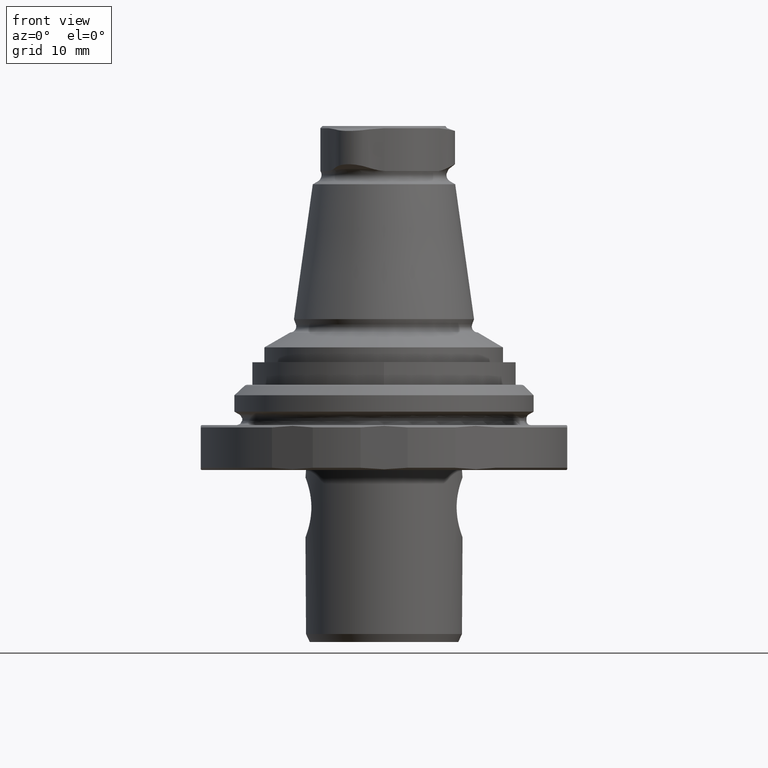
[diagram: clean part render]
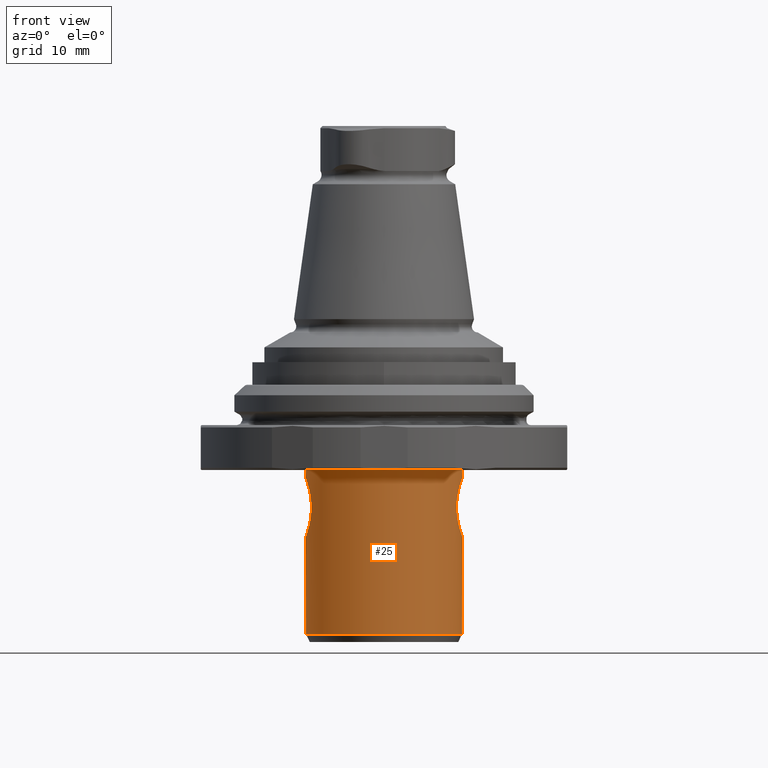
[diagram: same view with one face highlighted and labeled with its STEP entity id]
A machine part, front view. The second image highlights one B-rep face of the part: STEP entity #25.
In plain terms, the highlighted cylindrical surface (bore or boss wall) has radius 10.5 mm, axis along (0, 0, -1).
Its self-contained STEP definition (entity closure, byte-faithful):
#25 = ADVANCED_FACE('',(#26,#132,#310),#39,.T.);
#26 = FACE_BOUND('',#27,.T.);
#27 = EDGE_LOOP('',(#28,#61,#83,#131));
#28 = ORIENTED_EDGE('',*,*,#29,.T.);
#29 = EDGE_CURVE('',#30,#30,#32,.T.);
#30 = VERTEX_POINT('',#31);
#31 = CARTESIAN_POINT('',(-2.914335439641E-016,10.5,-7.));
#32 = SURFACE_CURVE('',#33,(#38,#49),.PCURVE_S1.);
#33 = CIRCLE('',#34,10.5);
#34 = AXIS2_PLACEMENT_3D('',#35,#36,#37);
#35 = CARTESIAN_POINT('',(2.888894916581E-031,-9.089951014118E-016,-7.)
  );
#36 = DIRECTION('',(0.E+000,0.E+000,-1.));
#37 = DIRECTION('',(-2.775557561563E-017,1.,0.E+000));
#38 = PCURVE('',#39,#44);
#39 = CYLINDRICAL_SURFACE('',#40,10.5);
#40 = AXIS2_PLACEMENT_3D('',#41,#42,#43);
#41 = CARTESIAN_POINT('',(2.888894916581E-031,-9.089951014118E-016,-50.)
  );
#42 = DIRECTION('',(0.E+000,0.E+000,-1.));
#43 = DIRECTION('',(-2.775557561563E-017,1.,0.E+000));
#44 = DEFINITIONAL_REPRESENTATION('',(#45),#48);
#45 = B_SPLINE_CURVE_WITH_KNOTS('',1,(#46,#47),.UNSPECIFIED.,.F.,.F.,(2,
    2),(0.E+000,6.28318530718),.PIECEWISE_BEZIER_KNOTS.);
#46 = CARTESIAN_POINT('',(0.E+000,-43.));
#47 = CARTESIAN_POINT('',(6.28318530718,-43.));
#48 = ( GEOMETRIC_REPRESENTATION_CONTEXT(2) 
PARAMETRIC_REPRESENTATION_CONTEXT() REPRESENTATION_CONTEXT('2D SPACE',''
  ) );
#49 = PCURVE('',#50,#55);
#50 = PLANE('',#51);
#51 = AXIS2_PLACEMENT_3D('',#52,#53,#54);
#52 = CARTESIAN_POINT('',(-17.5,-3.231871150908E-016,-7.));
#53 = DIRECTION('',(0.E+000,0.E+000,-1.));
#54 = DIRECTION('',(-1.,3.347474207549E-017,0.E+000));
#55 = DEFINITIONAL_REPRESENTATION('',(#56),#60);
#56 = CIRCLE('',#57,10.5);
#57 = AXIS2_PLACEMENT_2D('',#58,#59);
#58 = CARTESIAN_POINT('',(-17.5,-6.902532920684E-031));
#59 = DIRECTION('',(6.123031769112E-017,1.));
#60 = ( GEOMETRIC_REPRESENTATION_CONTEXT(2) 
PARAMETRIC_REPRESENTATION_CONTEXT() REPRESENTATION_CONTEXT('2D SPACE',''
  ) );
#61 = ORIENTED_EDGE('',*,*,#62,.T.);
#62 = EDGE_CURVE('',#30,#63,#65,.T.);
#63 = VERTEX_POINT('',#64);
#64 = CARTESIAN_POINT('',(-2.914335439641E-016,10.5,-28.92774653974));
#65 = SEAM_CURVE('',#66,(#69,#76),.PCURVE_S1.);
#66 = B_SPLINE_CURVE_WITH_KNOTS('',1,(#67,#68),.UNSPECIFIED.,.F.,.F.,(2,
    2),(-43.,-21.07225346025),.PIECEWISE_BEZIER_KNOTS.);
#67 = CARTESIAN_POINT('',(-2.914335439641E-016,10.5,-7.));
#68 = CARTESIAN_POINT('',(-2.914335439641E-016,10.5,-28.92774653974));
#69 = PCURVE('',#39,#70);
#70 = DEFINITIONAL_REPRESENTATION('',(#71),#75);
#71 = LINE('',#72,#73);
#72 = CARTESIAN_POINT('',(6.28318530718,0.E+000));
#73 = VECTOR('',#74,1.);
#74 = DIRECTION('',(0.E+000,1.));
#75 = ( GEOMETRIC_REPRESENTATION_CONTEXT(2) 
PARAMETRIC_REPRESENTATION_CONTEXT() REPRESENTATION_CONTEXT('2D SPACE',''
  ) );
#76 = PCURVE('',#39,#77);
#77 = DEFINITIONAL_REPRESENTATION('',(#78),#82);
#78 = LINE('',#79,#80);
#79 = CARTESIAN_POINT('',(0.E+000,0.E+000));
#80 = VECTOR('',#81,1.);
#81 = DIRECTION('',(0.E+000,1.));
#82 = ( GEOMETRIC_REPRESENTATION_CONTEXT(2) 
PARAMETRIC_REPRESENTATION_CONTEXT() REPRESENTATION_CONTEXT('2D SPACE',''
  ) );
#83 = ORIENTED_EDGE('',*,*,#84,.F.);
#84 = EDGE_CURVE('',#63,#63,#85,.T.);
#85 = SURFACE_CURVE('',#86,(#91,#97),.PCURVE_S1.);
#86 = CIRCLE('',#87,10.5);
#87 = AXIS2_PLACEMENT_3D('',#88,#89,#90);
#88 = CARTESIAN_POINT('',(2.888894916581E-031,-9.089951014118E-016,
    -28.92774653974));
#89 = DIRECTION('',(0.E+000,0.E+000,-1.));
#90 = DIRECTION('',(-2.775557561563E-017,1.,0.E+000));
#91 = PCURVE('',#39,#92);
#92 = DEFINITIONAL_REPRESENTATION('',(#93),#96);
#93 = B_SPLINE_CURVE_WITH_KNOTS('',1,(#94,#95),.UNSPECIFIED.,.F.,.F.,(2,
    2),(0.E+000,6.28318530718),.PIECEWISE_BEZIER_KNOTS.);
#94 = CARTESIAN_POINT('',(0.E+000,-21.07225346025));
#95 = CARTESIAN_POINT('',(6.28318530718,-21.07225346025));
#96 = ( GEOMETRIC_REPRESENTATION_CONTEXT(2) 
PARAMETRIC_REPRESENTATION_CONTEXT() REPRESENTATION_CONTEXT('2D SPACE',''
  ) );
#97 = PCURVE('',#98,#103);
#98 = CONICAL_SURFACE('',#99,10.,0.436332312999);
#99 = AXIS2_PLACEMENT_3D('',#100,#101,#102);
#100 = CARTESIAN_POINT('',(2.888894916581E-031,-9.089951014118E-016,-30.
    ));
#101 = DIRECTION('',(0.E+000,0.E+000,1.));
#102 = DIRECTION('',(2.775557561563E-017,-1.,0.E+000));
#103 = DEFINITIONAL_REPRESENTATION('',(#104),#130);
#104 = B_SPLINE_CURVE_WITH_KNOTS('',3,(#105,#106,#107,#108,#109,#110,
    #111,#112,#113,#114,#115,#116,#117,#118,#119,#120,#121,#122,#123,
    #124,#125,#126,#127,#128,#129),.UNSPECIFIED.,.F.,.F.,(4,1,1,1,1,1,1,
    1,1,1,1,1,1,1,1,1,1,1,1,1,1,1,4),(0.E+000,0.285599332145,
    0.571198664289,0.856797996434,1.142397328578,1.427996660723,
    1.713595992867,1.999195325012,2.284794657156,2.570393989301,
    2.855993321445,3.14159265359,3.427191985734,3.712791317879,
    3.998390650023,4.283989982168,4.569589314312,4.855188646457,
    5.140787978601,5.426387310746,5.711986642891,5.997585975035,
    6.28318530718),.QUASI_UNIFORM_KNOTS.);
#105 = CARTESIAN_POINT('',(9.424777960769,1.072253460255));
#106 = CARTESIAN_POINT('',(9.329578183388,1.072253460255));
#107 = CARTESIAN_POINT('',(9.139178628625,1.072253460255));
#108 = CARTESIAN_POINT('',(8.85357929648,1.072253460255));
#109 = CARTESIAN_POINT('',(8.567979964336,1.072253460255));
#110 = CARTESIAN_POINT('',(8.282380632191,1.072253460255));
#111 = CARTESIAN_POINT('',(7.996781300047,1.072253460255));
#112 = CARTESIAN_POINT('',(7.711181967902,1.072253460255));
#113 = CARTESIAN_POINT('',(7.425582635758,1.072253460255));
#114 = CARTESIAN_POINT('',(7.139983303613,1.072253460255));
#115 = CARTESIAN_POINT('',(6.854383971469,1.072253460255));
#116 = CARTESIAN_POINT('',(6.568784639324,1.072253460255));
#117 = CARTESIAN_POINT('',(6.28318530718,1.072253460255));
#118 = CARTESIAN_POINT('',(5.997585975035,1.072253460255));
#119 = CARTESIAN_POINT('',(5.711986642891,1.072253460255));
#120 = CARTESIAN_POINT('',(5.426387310746,1.072253460255));
#121 = CARTESIAN_POINT('',(5.140787978601,1.072253460255));
#122 = CARTESIAN_POINT('',(4.855188646457,1.072253460255));
#123 = CARTESIAN_POINT('',(4.569589314312,1.072253460255));
#124 = CARTESIAN_POINT('',(4.283989982168,1.072253460255));
#125 = CARTESIAN_POINT('',(3.998390650023,1.072253460255));
#126 = CARTESIAN_POINT('',(3.712791317879,1.072253460255));
#127 = CARTESIAN_POINT('',(3.427191985734,1.072253460255));
#128 = CARTESIAN_POINT('',(3.236792430971,1.072253460255));
#129 = CARTESIAN_POINT('',(3.14159265359,1.072253460255));
#130 = ( GEOMETRIC_REPRESENTATION_CONTEXT(2) 
PARAMETRIC_REPRESENTATION_CONTEXT() REPRESENTATION_CONTEXT('2D SPACE',''
  ) );
#131 = ORIENTED_EDGE('',*,*,#62,.F.);
#132 = FACE_BOUND('',#133,.T.);
#133 = EDGE_LOOP('',(#134));
#134 = ORIENTED_EDGE('',*,*,#135,.F.);
#135 = EDGE_CURVE('',#136,#136,#138,.T.);
#136 = VERTEX_POINT('',#137);
#137 = CARTESIAN_POINT('',(-10.5,-7.683715606687E-016,-16.));
#138 = SURFACE_CURVE('',#139,(#159,#232),.PCURVE_S1.);
#139 = B_SPLINE_CURVE_WITH_KNOTS('',3,(#140,#141,#142,#143,#144,#145,
    #146,#147,#148,#149,#150,#151,#152,#153,#154,#155,#156,#157,#158),
  .UNSPECIFIED.,.T.,.F.,(1,1,1,1,1,1,1,1,1,1,1,1,1,1,1,1,1,1,1,1,1,1,1),
  (-4.734395300078E-003,-3.156263533386E-003,-1.578131766693E-003,
    7.457290523101E-019,1.578131766693E-003,3.156263533386E-003,
    4.734395300078E-003,6.312527066771E-003,7.890658833464E-003,
    9.468790600157E-003,1.104692236685E-002,1.262505413354E-002,
    1.420318590024E-002,1.578131766693E-002,1.735944943362E-002,
    1.893758120031E-002,2.051571296701E-002,2.20938447337E-002,
    2.367197650039E-002,2.525010826708E-002,2.682824003378E-002,
    2.840637180047E-002,2.998450356716E-002),.UNSPECIFIED.);
#140 = CARTESIAN_POINT('',(-10.41619125491,1.581241846013,
    -15.78704197802));
#141 = CARTESIAN_POINT('',(-10.54203541505,1.263255026958E-003,
    -16.10681691007));
#142 = CARTESIAN_POINT('',(-10.41566708484,-1.586294866121,
    -15.78569038169));
#143 = CARTESIAN_POINT('',(-10.11315895501,-2.901838888228,
    -14.89801765556));
#144 = CARTESIAN_POINT('',(-9.800579724117,-3.785356635204,
    -13.58435323488));
#145 = CARTESIAN_POINT('',(-9.662221751712,-4.106925304122,
    -12.00410675717));
#146 = CARTESIAN_POINT('',(-9.799999389013,-3.78693583034,
    -10.41663416979));
#147 = CARTESIAN_POINT('',(-10.11403284706,-2.899375740519,
    -9.099063056431));
#148 = CARTESIAN_POINT('',(-10.4158598062,-1.583459092719,
    -8.213886411058));
#149 = CARTESIAN_POINT('',(-10.54199243996,-1.740133055027E-003,
    -7.893288531368));
#150 = CARTESIAN_POINT('',(-10.41616999514,1.582983856446,-8.21296061536
    ));
#151 = CARTESIAN_POINT('',(-10.11311612101,2.902570064305,
    -9.101854678167));
#152 = CARTESIAN_POINT('',(-9.799888348387,3.78702851985,-10.41879339025
    ));
#153 = CARTESIAN_POINT('',(-9.66228041387,4.106826567998,-12.00100239083
    ));
#154 = CARTESIAN_POINT('',(-9.800454043569,3.785663920379,
    -13.58505919978));
#155 = CARTESIAN_POINT('',(-10.11401235863,2.899618523697,
    -14.90091071889));
#156 = CARTESIAN_POINT('',(-10.41619125491,1.581241846013,
    -15.78704197802));
#157 = CARTESIAN_POINT('',(-10.54203541505,1.263255026958E-003,
    -16.10681691007));
#158 = CARTESIAN_POINT('',(-10.41566708484,-1.586294866121,
    -15.78569038169));
#159 = PCURVE('',#39,#160);
#160 = DEFINITIONAL_REPRESENTATION('',(#161),#231);
#161 = B_SPLINE_CURVE_WITH_KNOTS('',3,(#162,#163,#164,#165,#166,#167,
    #168,#169,#170,#171,#172,#173,#174,#175,#176,#177,#178,#179,#180,
    #181,#182,#183,#184,#185,#186,#187,#188,#189,#190,#191,#192,#193,
    #194,#195,#196,#197,#198,#199,#200,#201,#202,#203,#204,#205,#206,
    #207,#208,#209,#210,#211,#212,#213,#214,#215,#216,#217,#218,#219,
    #220,#221,#222,#223,#224,#225,#226,#227,#228,#229,#230),
  .UNSPECIFIED.,.T.,.F.,(4,1,1,1,1,1,1,1,1,1,1,1,1,1,1,1,1,1,1,1,1,1,1,1
    ,1,1,1,1,1,1,1,1,1,1,1,1,1,1,1,1,1,1,1,1,1,1,1,1,1,1,1,1,1,1,1,1,1,1
    ,1,1,1,1,1,1,1,1,4),(7.457290523101E-019,3.825773979861E-004,
    7.651547959723E-004,1.147732193958E-003,1.530309591945E-003,
    1.912886989931E-003,2.295464387917E-003,2.678041785903E-003,
    3.060619183889E-003,3.443196581875E-003,3.825773979861E-003,
    4.208351377847E-003,4.590928775834E-003,4.97350617382E-003,
    5.356083571806E-003,5.738660969792E-003,6.121238367778E-003,
    6.503815765764E-003,6.88639316375E-003,7.268970561736E-003,
    7.651547959723E-003,8.034125357709E-003,8.416702755695E-003,
    8.799280153681E-003,9.181857551667E-003,9.564434949653E-003,
    9.947012347639E-003,1.032958974563E-002,1.071216714361E-002,
    1.10947445416E-002,1.147732193958E-002,1.185989933757E-002,
    1.224247673556E-002,1.262505413354E-002,1.300763153153E-002,
    1.339020892951E-002,1.37727863275E-002,1.415536372549E-002,
    1.453794112347E-002,1.492051852146E-002,1.530309591945E-002,
    1.568567331743E-002,1.606825071542E-002,1.64508281134E-002,
    1.683340551139E-002,1.721598290938E-002,1.759856030736E-002,
    1.798113770535E-002,1.836371510333E-002,1.874629250132E-002,
    1.912886989931E-002,1.951144729729E-002,1.989402469528E-002,
    2.027660209326E-002,2.065917949125E-002,2.104175688924E-002,
    2.142433428722E-002,2.180691168521E-002,2.21894890832E-002,
    2.257206648118E-002,2.295464387917E-002,2.333722127715E-002,
    2.371979867514E-002,2.410237607313E-002,2.448495347111E-002,
    2.48675308691E-002,2.525010826708E-002),.UNSPECIFIED.);
#162 = CARTESIAN_POINT('',(4.712388980385,-34.));
#163 = CARTESIAN_POINT('',(4.700201100185,-34.00005460995));
#164 = CARTESIAN_POINT('',(4.675807854807,-34.0127191469));
#165 = CARTESIAN_POINT('',(4.639505592278,-34.06832109986));
#166 = CARTESIAN_POINT('',(4.603829084181,-34.1594732074));
#167 = CARTESIAN_POINT('',(4.569123169934,-34.28510013935));
#168 = CARTESIAN_POINT('',(4.53574319603,-34.44420210379));
#169 = CARTESIAN_POINT('',(4.503911703505,-34.63486565554));
#170 = CARTESIAN_POINT('',(4.473849760354,-34.85506671514));
#171 = CARTESIAN_POINT('',(4.445793075606,-35.10280187714));
#172 = CARTESIAN_POINT('',(4.419989363525,-35.37609383225));
#173 = CARTESIAN_POINT('',(4.396666069542,-35.67272688342));
#174 = CARTESIAN_POINT('',(4.376052595278,-35.99042640528));
#175 = CARTESIAN_POINT('',(4.358384915581,-36.32688399108));
#176 = CARTESIAN_POINT('',(4.343919932966,-36.67998109056));
#177 = CARTESIAN_POINT('',(4.332841172402,-37.04652586468));
#178 = CARTESIAN_POINT('',(4.325291302564,-37.42271015576));
#179 = CARTESIAN_POINT('',(4.321415429939,-37.80486301879));
#180 = CARTESIAN_POINT('',(4.321395522205,-38.18930588559));
#181 = CARTESIAN_POINT('',(4.325235590889,-38.57222181857));
#182 = CARTESIAN_POINT('',(4.332761898468,-38.94962704462));
#183 = CARTESIAN_POINT('',(4.343836983016,-39.31761556581));
#184 = CARTESIAN_POINT('',(4.358328086939,-39.67210546954));
#185 = CARTESIAN_POINT('',(4.376052086007,-40.00972685338));
#186 = CARTESIAN_POINT('',(4.396735892021,-40.32833890781));
#187 = CARTESIAN_POINT('',(4.420130589059,-40.6255856618));
#188 = CARTESIAN_POINT('',(4.445992368819,-40.89914143204));
#189 = CARTESIAN_POINT('',(4.474082916223,-41.14678129283));
#190 = CARTESIAN_POINT('',(4.504153316363,-41.36666339626));
#191 = CARTESIAN_POINT('',(4.535965113257,-41.55689838785));
#192 = CARTESIAN_POINT('',(4.569293699982,-41.71558603257));
#193 = CARTESIAN_POINT('',(4.603915601722,-41.84091869612));
#194 = CARTESIAN_POINT('',(4.639499132919,-41.93186892461));
#195 = CARTESIAN_POINT('',(4.675722744211,-41.98734466541));
#196 = CARTESIAN_POINT('',(4.712268168042,-42.00627127763));
#197 = CARTESIAN_POINT('',(4.748830297498,-41.98756907215));
#198 = CARTESIAN_POINT('',(4.785096815412,-41.93225175699));
#199 = CARTESIAN_POINT('',(4.820742383743,-41.84132696309));
#200 = CARTESIAN_POINT('',(4.855438505841,-41.71582384853));
#201 = CARTESIAN_POINT('',(4.888847208472,-41.55669153986));
#202 = CARTESIAN_POINT('',(4.920735143359,-41.36584711075));
#203 = CARTESIAN_POINT('',(4.950866720399,-41.14532463709));
#204 = CARTESIAN_POINT('',(4.978993220432,-40.89713704176));
#205 = CARTESIAN_POINT('',(5.004852287153,-40.6232668089));
#206 = CARTESIAN_POINT('',(5.028213859742,-40.32596914002));
#207 = CARTESIAN_POINT('',(5.048849257684,-40.00756862799));
#208 = CARTESIAN_POINT('',(5.066522367806,-39.6704213211));
#209 = CARTESIAN_POINT('',(5.080975536874,-39.31669286238));
#210 = CARTESIAN_POINT('',(5.092028330879,-38.94962914574));
#211 = CARTESIAN_POINT('',(5.099543553953,-38.57309822464));
#212 = CARTESIAN_POINT('',(5.103380972749,-38.19082449793));
#213 = CARTESIAN_POINT('',(5.103363928219,-37.80656044184));
#214 = CARTESIAN_POINT('',(5.099492351383,-37.42410168597));
#215 = CARTESIAN_POINT('',(5.091942711544,-37.04731476307));
#216 = CARTESIAN_POINT('',(5.080855162347,-36.68001103382));
#217 = CARTESIAN_POINT('',(5.066366349907,-36.32616345237));
#218 = CARTESIAN_POINT('',(5.048658070054,-35.98907222484));
#219 = CARTESIAN_POINT('',(5.027992721103,-35.67087321051));
#220 = CARTESIAN_POINT('',(5.004610473939,-35.37390706798));
#221 = CARTESIAN_POINT('',(4.978744485678,-35.10048207616));
#222 = CARTESIAN_POINT('',(4.950628050157,-34.85282569512));
#223 = CARTESIAN_POINT('',(4.920523347659,-34.63285090116));
#224 = CARTESIAN_POINT('',(4.888679544542,-34.4425079153));
#225 = CARTESIAN_POINT('',(4.855333393274,-34.28376292832));
#226 = CARTESIAN_POINT('',(4.820717566059,-34.1584792794));
#227 = CARTESIAN_POINT('',(4.785150079847,-34.06766310988));
#228 = CARTESIAN_POINT('',(4.748941513131,-34.01239147731));
#229 = CARTESIAN_POINT('',(4.724576874422,-33.99994539004));
#230 = CARTESIAN_POINT('',(4.712388980385,-34.));
#231 = ( GEOMETRIC_REPRESENTATION_CONTEXT(2) 
PARAMETRIC_REPRESENTATION_CONTEXT() REPRESENTATION_CONTEXT('2D SPACE',''
  ) );
#232 = PCURVE('',#233,#238);
#233 = CYLINDRICAL_SURFACE('',#234,4.);
#234 = AXIS2_PLACEMENT_3D('',#235,#236,#237);
#235 = CARTESIAN_POINT('',(-9.6,0.E+000,-12.));
#236 = DIRECTION('',(1.,0.E+000,0.E+000));
#237 = DIRECTION('',(0.E+000,0.E+000,-1.));
#238 = DEFINITIONAL_REPRESENTATION('',(#239),#309);
#239 = B_SPLINE_CURVE_WITH_KNOTS('',3,(#240,#241,#242,#243,#244,#245,
    #246,#247,#248,#249,#250,#251,#252,#253,#254,#255,#256,#257,#258,
    #259,#260,#261,#262,#263,#264,#265,#266,#267,#268,#269,#270,#271,
    #272,#273,#274,#275,#276,#277,#278,#279,#280,#281,#282,#283,#284,
    #285,#286,#287,#288,#289,#290,#291,#292,#293,#294,#295,#296,#297,
    #298,#299,#300,#301,#302,#303,#304,#305,#306,#307,#308),
  .UNSPECIFIED.,.F.,.F.,(4,1,1,1,1,1,1,1,1,1,1,1,1,1,1,1,1,1,1,1,1,1,1,1
    ,1,1,1,1,1,1,1,1,1,1,1,1,1,1,1,1,1,1,1,1,1,1,1,1,1,1,1,1,1,1,1,1,1,1
    ,1,1,1,1,1,1,1,1,4),(7.457290523101E-019,3.825773979861E-004,
    7.651547959723E-004,1.147732193958E-003,1.530309591945E-003,
    1.912886989931E-003,2.295464387917E-003,2.678041785903E-003,
    3.060619183889E-003,3.443196581875E-003,3.825773979861E-003,
    4.208351377847E-003,4.590928775834E-003,4.97350617382E-003,
    5.356083571806E-003,5.738660969792E-003,6.121238367778E-003,
    6.503815765764E-003,6.88639316375E-003,7.268970561736E-003,
    7.651547959723E-003,8.034125357709E-003,8.416702755695E-003,
    8.799280153681E-003,9.181857551667E-003,9.564434949653E-003,
    9.947012347639E-003,1.032958974563E-002,1.071216714361E-002,
    1.10947445416E-002,1.147732193958E-002,1.185989933757E-002,
    1.224247673556E-002,1.262505413354E-002,1.300763153153E-002,
    1.339020892951E-002,1.37727863275E-002,1.415536372549E-002,
    1.453794112347E-002,1.492051852146E-002,1.530309591945E-002,
    1.568567331743E-002,1.606825071542E-002,1.64508281134E-002,
    1.683340551139E-002,1.721598290938E-002,1.759856030736E-002,
    1.798113770535E-002,1.836371510333E-002,1.874629250132E-002,
    1.912886989931E-002,1.951144729729E-002,1.989402469528E-002,
    2.027660209326E-002,2.065917949125E-002,2.104175688924E-002,
    2.142433428722E-002,2.180691168521E-002,2.21894890832E-002,
    2.257206648118E-002,2.295464387917E-002,2.333722127715E-002,
    2.371979867514E-002,2.410237607313E-002,2.448495347111E-002,
    2.48675308691E-002,2.525010826708E-002),.UNSPECIFIED.);
#240 = CARTESIAN_POINT('',(6.28318530718,-0.9));
#241 = CARTESIAN_POINT('',(6.251194613633,-0.899978821411));
#242 = CARTESIAN_POINT('',(6.18715475018,-0.894995443203));
#243 = CARTESIAN_POINT('',(6.091082768388,-0.873783105539));
#244 = CARTESIAN_POINT('',(5.995151873765,-0.839911396893));
#245 = CARTESIAN_POINT('',(5.899550230492,-0.794485843427));
#246 = CARTESIAN_POINT('',(5.804446840403,-0.738509357501));
#247 = CARTESIAN_POINT('',(5.709701948866,-0.674226645046));
#248 = CARTESIAN_POINT('',(5.615197197284,-0.604033907488));
#249 = CARTESIAN_POINT('',(5.520850308462,-0.530295167597));
#250 = CARTESIAN_POINT('',(5.426584585128,-0.455354171546));
#251 = CARTESIAN_POINT('',(5.332295794618,-0.381777484203));
#252 = CARTESIAN_POINT('',(5.237880323419,-0.312214020681));
#253 = CARTESIAN_POINT('',(5.14323575123,-0.249251349449));
#254 = CARTESIAN_POINT('',(5.048189107473,-0.1956441321));
#255 = CARTESIAN_POINT('',(4.952732681727,-0.153253468191));
#256 = CARTESIAN_POINT('',(4.857005029088,-0.123457596995));
#257 = CARTESIAN_POINT('',(4.761114982998,-0.107656290868));
#258 = CARTESIAN_POINT('',(4.665120513633,-0.107584158309));
#259 = CARTESIAN_POINT('',(4.569045111885,-0.123255556118));
#260 = CARTESIAN_POINT('',(4.473023826623,-0.152965408767));
#261 = CARTESIAN_POINT('',(4.377221308242,-0.195341018755));
#262 = CARTESIAN_POINT('',(4.281829204174,-0.249040234757));
#263 = CARTESIAN_POINT('',(4.186864862593,-0.312199789359));
#264 = CARTESIAN_POINT('',(4.092164280127,-0.381995712317));
#265 = CARTESIAN_POINT('',(3.997644642352,-0.455784958465));
#266 = CARTESIAN_POINT('',(3.903228607383,-0.530853367729));
#267 = CARTESIAN_POINT('',(3.808828233888,-0.604595874197));
#268 = CARTESIAN_POINT('',(3.714346964181,-0.67471486384));
#269 = CARTESIAN_POINT('',(3.619694664751,-0.73888033086));
#270 = CARTESIAN_POINT('',(3.524752284361,-0.794734494304));
#271 = CARTESIAN_POINT('',(3.429382493882,-0.84006549283));
#272 = CARTESIAN_POINT('',(3.333704548656,-0.873865297677));
#273 = CARTESIAN_POINT('',(3.23784366306,-0.895026355612));
#274 = CARTESIAN_POINT('',(3.1419093913,-0.902467915825));
#275 = CARTESIAN_POINT('',(3.045933635433,-0.895101542276));
#276 = CARTESIAN_POINT('',(2.949966245306,-0.873993835571));
#277 = CARTESIAN_POINT('',(2.85413139255,-0.840203327544));
#278 = CARTESIAN_POINT('',(2.758565121936,-0.794816886624));
#279 = CARTESIAN_POINT('',(2.663388719858,-0.738816103619));
#280 = CARTESIAN_POINT('',(2.568490696033,-0.674456622175));
#281 = CARTESIAN_POINT('',(2.4737891343,-0.604149512915));
#282 = CARTESIAN_POINT('',(2.379231198318,-0.53027284733));
#283 = CARTESIAN_POINT('',(2.284765308214,-0.455183835791));
#284 = CARTESIAN_POINT('',(2.190289516099,-0.381468746584));
#285 = CARTESIAN_POINT('',(2.095700481213,-0.311798639045));
#286 = CARTESIAN_POINT('',(2.000899399815,-0.248781029339));
#287 = CARTESIAN_POINT('',(1.905718269216,-0.195196986164));
#288 = CARTESIAN_POINT('',(1.810154781464,-0.152899056641));
#289 = CARTESIAN_POINT('',(1.714356809621,-0.123236647406));
#290 = CARTESIAN_POINT('',(1.618444598337,-0.10758603906));
#291 = CARTESIAN_POINT('',(1.52249468191,-0.107654820232));
#292 = CARTESIAN_POINT('',(1.426526442744,-0.123441299784));
#293 = CARTESIAN_POINT('',(1.330646985911,-0.15323460287));
#294 = CARTESIAN_POINT('',(1.235000056816,-0.195654874484));
#295 = CARTESIAN_POINT('',(1.139758202126,-0.249350190282));
#296 = CARTESIAN_POINT('',(1.044929463995,-0.31246099446));
#297 = CARTESIAN_POINT('',(0.950341629639,-0.382191096165));
#298 = CARTESIAN_POINT('',(0.855897120791,-0.455920083984));
#299 = CARTESIAN_POINT('',(0.761496326983,-0.530960651868));
#300 = CARTESIAN_POINT('',(0.667039536106,-0.604722147764));
#301 = CARTESIAN_POINT('',(0.572467850637,-0.674881640344));
#302 = CARTESIAN_POINT('',(0.477726223201,-0.739089561264));
#303 = CARTESIAN_POINT('',(0.382734913463,-0.794966251635));
#304 = CARTESIAN_POINT('',(0.287386046616,-0.840281530477));
#305 = CARTESIAN_POINT('',(0.191760064708,-0.874034463736));
#306 = CARTESIAN_POINT('',(9.595071572599E-002,-0.895122516902));
#307 = CARTESIAN_POINT('',(3.199088140972E-002,-0.900021178589));
#308 = CARTESIAN_POINT('',(6.217248937901E-015,-0.9));
#309 = ( GEOMETRIC_REPRESENTATION_CONTEXT(2) 
PARAMETRIC_REPRESENTATION_CONTEXT() REPRESENTATION_CONTEXT('2D SPACE',''
  ) );
#310 = FACE_BOUND('',#311,.T.);
#311 = EDGE_LOOP('',(#312));
#312 = ORIENTED_EDGE('',*,*,#313,.T.);
#313 = EDGE_CURVE('',#314,#314,#316,.T.);
#314 = VERTEX_POINT('',#315);
#315 = CARTESIAN_POINT('',(10.5,-2.264647810906E-016,-16.00243817719));
#316 = SURFACE_CURVE('',#317,(#337,#410),.PCURVE_S1.);
#317 = B_SPLINE_CURVE_WITH_KNOTS('',3,(#318,#319,#320,#321,#322,#323,
    #324,#325,#326,#327,#328,#329,#330,#331,#332,#333,#334,#335,#336),
  .UNSPECIFIED.,.T.,.F.,(1,1,1,1,1,1,1,1,1,1,1,1,1,1,1,1,1,1,1,1,1,1,1),
  (-4.735926257787E-003,-3.157284171858E-003,-1.578642085929E-003,
    2.197459297993E-019,1.578642085929E-003,3.157284171858E-003,
    4.735926257787E-003,6.314568343716E-003,7.893210429645E-003,
    9.471852515574E-003,1.10504946015E-002,1.262913668743E-002,
    1.420777877336E-002,1.578642085929E-002,1.736506294522E-002,
    1.894370503115E-002,2.052234711708E-002,2.210098920301E-002,
    2.367963128894E-002,2.525827337486E-002,2.683691546079E-002,
    2.841555754672E-002,2.999419963265E-002),.UNSPECIFIED.);
#318 = CARTESIAN_POINT('',(10.416004129861,1.581629546301,
    -15.78591409095));
#319 = CARTESIAN_POINT('',(10.542123567681,1.252076295964E-003,
    -16.1110262887));
#320 = CARTESIAN_POINT('',(10.415501599414,-1.586637851485,
    -15.78460981739));
#321 = CARTESIAN_POINT('',(10.114142829315,-2.897691306037,-14.888978592
    ));
#322 = CARTESIAN_POINT('',(9.803206678644,-3.778729915998,
    -13.57362813348));
#323 = CARTESIAN_POINT('',(9.662324878917,-4.106682497417,
    -11.99539119348));
#324 = CARTESIAN_POINT('',(9.797095066674,-3.794205778169,-10.4056737354
    ));
#325 = CARTESIAN_POINT('',(10.112716247974,-2.904665507914,
    -9.087423347808));
#326 = CARTESIAN_POINT('',(10.415954209947,-1.583882044835,
    -8.208391468391));
#327 = CARTESIAN_POINT('',(10.541978832383,-1.184568118902E-003,
    -7.892288891023));
#328 = CARTESIAN_POINT('',(10.416130296681,1.584076772911,
    -8.207824328964));
#329 = CARTESIAN_POINT('',(10.111766593776,2.90790979091,-9.090373953583
    ));
#330 = CARTESIAN_POINT('',(9.797032211807,3.794182116943,-10.40751691357
    ));
#331 = CARTESIAN_POINT('',(9.662330271913,4.106710032461,-11.99274078825
    ));
#332 = CARTESIAN_POINT('',(9.803232823487,3.778680178562,-13.57521824962
    ));
#333 = CARTESIAN_POINT('',(10.115142904821,2.894902140671,
    -14.89233992943));
#334 = CARTESIAN_POINT('',(10.416004129861,1.581629546301,
    -15.78591409095));
#335 = CARTESIAN_POINT('',(10.542123567681,1.252076295964E-003,
    -16.1110262887));
#336 = CARTESIAN_POINT('',(10.415501599414,-1.586637851485,
    -15.78460981739));
#337 = PCURVE('',#39,#338);
#338 = DEFINITIONAL_REPRESENTATION('',(#339),#409);
#339 = B_SPLINE_CURVE_WITH_KNOTS('',3,(#340,#341,#342,#343,#344,#345,
    #346,#347,#348,#349,#350,#351,#352,#353,#354,#355,#356,#357,#358,
    #359,#360,#361,#362,#363,#364,#365,#366,#367,#368,#369,#370,#371,
    #372,#373,#374,#375,#376,#377,#378,#379,#380,#381,#382,#383,#384,
    #385,#386,#387,#388,#389,#390,#391,#392,#393,#394,#395,#396,#397,
    #398,#399,#400,#401,#402,#403,#404,#405,#406,#407,#408),
  .UNSPECIFIED.,.F.,.F.,(4,1,1,1,1,1,1,1,1,1,1,1,1,1,1,1,1,1,1,1,1,1,1,1
    ,1,1,1,1,1,1,1,1,1,1,1,1,1,1,1,1,1,1,1,1,1,1,1,1,1,1,1,1,1,1,1,1,1,1
    ,1,1,1,1,1,1,1,1,4),(2.197459297993E-019,3.827011117404E-004,
    7.654022234807E-004,1.148103335221E-003,1.530804446961E-003,
    1.913505558702E-003,2.296206670442E-003,2.678907782183E-003,
    3.061608893923E-003,3.444310005663E-003,3.827011117404E-003,
    4.209712229144E-003,4.592413340884E-003,4.975114452625E-003,
    5.357815564365E-003,5.740516676106E-003,6.123217787846E-003,
    6.505918899586E-003,6.888620011327E-003,7.271321123067E-003,
    7.654022234807E-003,8.036723346548E-003,8.419424458288E-003,
    8.802125570029E-003,9.184826681769E-003,9.567527793509E-003,
    9.95022890525E-003,1.033293001699E-002,1.071563112873E-002,
    1.109833224047E-002,1.148103335221E-002,1.186373446395E-002,
    1.224643557569E-002,1.262913668743E-002,1.301183779917E-002,
    1.339453891091E-002,1.377724002265E-002,1.415994113439E-002,
    1.454264224613E-002,1.492534335787E-002,1.530804446961E-002,
    1.569074558136E-002,1.60734466931E-002,1.645614780484E-002,
    1.683884891658E-002,1.722155002832E-002,1.760425114006E-002,
    1.79869522518E-002,1.836965336354E-002,1.875235447528E-002,
    1.913505558702E-002,1.951775669876E-002,1.99004578105E-002,
    2.028315892224E-002,2.066586003398E-002,2.104856114572E-002,
    2.143126225746E-002,2.18139633692E-002,2.219666448094E-002,
    2.257936559268E-002,2.296206670442E-002,2.334476781616E-002,
    2.37274689279E-002,2.411017003964E-002,2.449287115138E-002,
    2.487557226312E-002,2.525827337486E-002),.UNSPECIFIED.);
#340 = CARTESIAN_POINT('',(1.570796326795,-33.9975618228));
#341 = CARTESIAN_POINT('',(1.582986995641,-33.99761452072));
#342 = CARTESIAN_POINT('',(1.607385774322,-34.01048342107));
#343 = CARTESIAN_POINT('',(1.643689583193,-34.06690307386));
#344 = CARTESIAN_POINT('',(1.679354248106,-34.15927070631));
#345 = CARTESIAN_POINT('',(1.714028343671,-34.2863973856));
#346 = CARTESIAN_POINT('',(1.747348551672,-34.44717073108));
#347 = CARTESIAN_POINT('',(1.779099988819,-34.63955155013));
#348 = CARTESIAN_POINT('',(1.809071253377,-34.86138688318));
#349 = CARTESIAN_POINT('',(1.837035793292,-35.11055031559));
#350 = CARTESIAN_POINT('',(1.862754879936,-35.38492115055));
#351 = CARTESIAN_POINT('',(1.886011165921,-35.68228517447));
#352 = CARTESIAN_POINT('',(1.906586251558,-36.00041268488));
#353 = CARTESIAN_POINT('',(1.924254409541,-36.33703181566));
#354 = CARTESIAN_POINT('',(1.938772215863,-36.69005321085));
#355 = CARTESIAN_POINT('',(1.949952623117,-37.0563706827));
#356 = CARTESIAN_POINT('',(1.957639606623,-37.43229696894));
#357 = CARTESIAN_POINT('',(1.961676857664,-37.81426744269));
#358 = CARTESIAN_POINT('',(1.961871126257,-38.19873695576));
#359 = CARTESIAN_POINT('',(1.958204700038,-38.58190363749));
#360 = CARTESIAN_POINT('',(1.950834796153,-38.95968106546));
#361 = CARTESIAN_POINT('',(1.939883660774,-39.3280857839));
#362 = CARTESIAN_POINT('',(1.925465973367,-39.68295084978));
#363 = CARTESIAN_POINT('',(1.907758480374,-40.02082685112));
#364 = CARTESIAN_POINT('',(1.887047952303,-40.33949806878));
#365 = CARTESIAN_POINT('',(1.863593203085,-40.63653621933));
#366 = CARTESIAN_POINT('',(1.837648811086,-40.90953027146));
#367 = CARTESIAN_POINT('',(1.809463010984,-41.15622255366));
#368 = CARTESIAN_POINT('',(1.779293816013,-41.37491098307));
#369 = CARTESIAN_POINT('',(1.747388881804,-41.56382169462));
#370 = CARTESIAN_POINT('',(1.713982437828,-41.72117707049));
#371 = CARTESIAN_POINT('',(1.679305736738,-41.84528781663));
#372 = CARTESIAN_POINT('',(1.643684342899,-41.93522471923));
#373 = CARTESIAN_POINT('',(1.607434953806,-41.98999553927));
#374 = CARTESIAN_POINT('',(1.570870828551,-42.00862502461));
#375 = CARTESIAN_POINT('',(1.534292411276,-41.99013300083));
#376 = CARTESIAN_POINT('',(1.498006414786,-41.93544160508));
#377 = CARTESIAN_POINT('',(1.46233224189,-41.84546708793));
#378 = CARTESIAN_POINT('',(1.427592637352,-41.72114654409));
#379 = CARTESIAN_POINT('',(1.394118599376,-41.56333957829));
#380 = CARTESIAN_POINT('',(1.362150425691,-41.37384199832));
#381 = CARTESIAN_POINT('',(1.331932456913,-41.15456105369));
#382 = CARTESIAN_POINT('',(1.303721753106,-40.90738977416));
#383 = CARTESIAN_POINT('',(1.277788787108,-40.63416851334));
#384 = CARTESIAN_POINT('',(1.254373366367,-40.33716745718));
#385 = CARTESIAN_POINT('',(1.233714984483,-40.01877359701));
#386 = CARTESIAN_POINT('',(1.21605968183,-39.68139516171));
#387 = CARTESIAN_POINT('',(1.201678598354,-39.32724621379));
#388 = CARTESIAN_POINT('',(1.190746854557,-38.95965908315));
#389 = CARTESIAN_POINT('',(1.183385403233,-38.58261310571));
#390 = CARTESIAN_POINT('',(1.179720814956,-38.1999313477));
#391 = CARTESIAN_POINT('',(1.179915235371,-37.81549332136));
#392 = CARTESIAN_POINT('',(1.183955109594,-37.43309438926));
#393 = CARTESIAN_POINT('',(1.191650842904,-37.05647345437));
#394 = CARTESIAN_POINT('',(1.202849670216,-36.68934279541));
#395 = CARTESIAN_POINT('',(1.217399990483,-36.33556301238));
#396 = CARTESIAN_POINT('',(1.235115292994,-35.99834959387));
#397 = CARTESIAN_POINT('',(1.255746065153,-35.67979663518));
#398 = CARTESIAN_POINT('',(1.279061709477,-35.38219815626));
#399 = CARTESIAN_POINT('',(1.304839217912,-35.10780667492));
#400 = CARTESIAN_POINT('',(1.332855268308,-34.85883783723));
#401 = CARTESIAN_POINT('',(1.362859035997,-34.63733864087));
#402 = CARTESIAN_POINT('',(1.394612530236,-34.44537296358));
#403 = CARTESIAN_POINT('',(1.427890876779,-34.28502600793));
#404 = CARTESIAN_POINT('',(1.462470830493,-34.15827907607));
#405 = CARTESIAN_POINT('',(1.498025034064,-34.06626001868));
#406 = CARTESIAN_POINT('',(1.534235208149,-34.01016722068));
#407 = CARTESIAN_POINT('',(1.558605646216,-33.99750912488));
#408 = CARTESIAN_POINT('',(1.570796326795,-33.9975618228));
#409 = ( GEOMETRIC_REPRESENTATION_CONTEXT(2) 
PARAMETRIC_REPRESENTATION_CONTEXT() REPRESENTATION_CONTEXT('2D SPACE',''
  ) );
#410 = PCURVE('',#411,#416);
#411 = CYLINDRICAL_SURFACE('',#412,4.);
#412 = AXIS2_PLACEMENT_3D('',#413,#414,#415);
#413 = CARTESIAN_POINT('',(9.600548255683,0.E+000,-11.96859045296));
#414 = DIRECTION('',(0.999390827019,0.E+000,-3.48994967025E-002));
#415 = DIRECTION('',(-3.48994967025E-002,0.E+000,-0.999390827019));
#416 = DEFINITIONAL_REPRESENTATION('',(#417),#487);
#417 = B_SPLINE_CURVE_WITH_KNOTS('',3,(#418,#419,#420,#421,#422,#423,
    #424,#425,#426,#427,#428,#429,#430,#431,#432,#433,#434,#435,#436,
    #437,#438,#439,#440,#441,#442,#443,#444,#445,#446,#447,#448,#449,
    #450,#451,#452,#453,#454,#455,#456,#457,#458,#459,#460,#461,#462,
    #463,#464,#465,#466,#467,#468,#469,#470,#471,#472,#473,#474,#475,
    #476,#477,#478,#479,#480,#481,#482,#483,#484,#485,#486),
  .UNSPECIFIED.,.F.,.F.,(4,1,1,1,1,1,1,1,1,1,1,1,1,1,1,1,1,1,1,1,1,1,1,1
    ,1,1,1,1,1,1,1,1,1,1,1,1,1,1,1,1,1,1,1,1,1,1,1,1,1,1,1,1,1,1,1,1,1,1
    ,1,1,1,1,1,1,1,1,4),(2.197459297993E-019,3.827011117404E-004,
    7.654022234807E-004,1.148103335221E-003,1.530804446961E-003,
    1.913505558702E-003,2.296206670442E-003,2.678907782183E-003,
    3.061608893923E-003,3.444310005663E-003,3.827011117404E-003,
    4.209712229144E-003,4.592413340884E-003,4.975114452625E-003,
    5.357815564365E-003,5.740516676106E-003,6.123217787846E-003,
    6.505918899586E-003,6.888620011327E-003,7.271321123067E-003,
    7.654022234807E-003,8.036723346548E-003,8.419424458288E-003,
    8.802125570029E-003,9.184826681769E-003,9.567527793509E-003,
    9.95022890525E-003,1.033293001699E-002,1.071563112873E-002,
    1.109833224047E-002,1.148103335221E-002,1.186373446395E-002,
    1.224643557569E-002,1.262913668743E-002,1.301183779917E-002,
    1.339453891091E-002,1.377724002265E-002,1.415994113439E-002,
    1.454264224613E-002,1.492534335787E-002,1.530804446961E-002,
    1.569074558136E-002,1.60734466931E-002,1.645614780484E-002,
    1.683884891658E-002,1.722155002832E-002,1.760425114006E-002,
    1.79869522518E-002,1.836965336354E-002,1.875235447528E-002,
    1.913505558702E-002,1.951775669876E-002,1.99004578105E-002,
    2.028315892224E-002,2.066586003398E-002,2.104856114572E-002,
    2.143126225746E-002,2.18139633692E-002,2.219666448094E-002,
    2.257936559268E-002,2.296206670442E-002,2.334476781616E-002,
    2.37274689279E-002,2.411017003964E-002,2.449287115138E-002,
    2.487557226312E-002,2.525827337486E-002),.UNSPECIFIED.);
#418 = CARTESIAN_POINT('',(6.28318530718,1.039683077967));
#419 = CARTESIAN_POINT('',(6.251187659923,1.039660946944));
#420 = CARTESIAN_POINT('',(6.187132684271,1.034222885839));
#421 = CARTESIAN_POINT('',(6.091054937856,1.011037952382));
#422 = CARTESIAN_POINT('',(5.995154354814,0.973970889666));
#423 = CARTESIAN_POINT('',(5.899642981031,0.924194860175));
#424 = CARTESIAN_POINT('',(5.804717885743,0.862781069454));
#425 = CARTESIAN_POINT('',(5.710228815197,0.792034819622));
#426 = CARTESIAN_POINT('',(5.616046250375,0.714412402269));
#427 = CARTESIAN_POINT('',(5.522081863285,0.632336562095));
#428 = CARTESIAN_POINT('',(5.428262743628,0.548215730871));
#429 = CARTESIAN_POINT('',(5.334465164072,0.464637611153));
#430 = CARTESIAN_POINT('',(5.240554494886,0.384257170971));
#431 = CARTESIAN_POINT('',(5.146400070574,0.309677532134));
#432 = CARTESIAN_POINT('',(5.051802764409,0.24364521261));
#433 = CARTESIAN_POINT('',(4.956739716199,0.188139115703));
#434 = CARTESIAN_POINT('',(4.861327133399,0.144727191261));
#435 = CARTESIAN_POINT('',(4.765644674126,0.114983164409));
#436 = CARTESIAN_POINT('',(4.669707166867,0.100815503356));
#437 = CARTESIAN_POINT('',(4.573535858692,0.10243321769));
#438 = CARTESIAN_POINT('',(4.477301436631,0.118350055516));
#439 = CARTESIAN_POINT('',(4.381188239344,0.147401916603));
#440 = CARTESIAN_POINT('',(4.285397004083,0.188476644545));
#441 = CARTESIAN_POINT('',(4.189955939255,0.239855226187));
#442 = CARTESIAN_POINT('',(4.094739628502,0.298709497223));
#443 = CARTESIAN_POINT('',(3.9997021713,0.362419575242));
#444 = CARTESIAN_POINT('',(3.90480565089,0.428285444995));
#445 = CARTESIAN_POINT('',(3.809985667243,0.493725317773));
#446 = CARTESIAN_POINT('',(3.715139643995,0.556487858302));
#447 = CARTESIAN_POINT('',(3.620182284554,0.614286304974));
#448 = CARTESIAN_POINT('',(3.525004135712,0.664806529261));
#449 = CARTESIAN_POINT('',(3.429477593254,0.705881750832));
#450 = CARTESIAN_POINT('',(3.333697985148,0.73656244319));
#451 = CARTESIAN_POINT('',(3.237770798532,0.755798436657));
#452 = CARTESIAN_POINT('',(3.141787963637,0.762566663807));
#453 = CARTESIAN_POINT('',(3.045769154566,0.755836291391));
#454 = CARTESIAN_POINT('',(2.949749591927,0.736621699784));
#455 = CARTESIAN_POINT('',(2.853833649857,0.705929191011));
#456 = CARTESIAN_POINT('',(2.758135867151,0.664793419463));
#457 = CARTESIAN_POINT('',(2.66275253676,0.614143708417));
#458 = CARTESIAN_POINT('',(2.567580623563,0.556183906991));
#459 = CARTESIAN_POINT('',(2.472546446708,0.493273057537));
#460 = CARTESIAN_POINT('',(2.377600759625,0.427738246107));
#461 = CARTESIAN_POINT('',(2.282685328155,0.361881760852));
#462 = CARTESIAN_POINT('',(2.187719398417,0.298263591055));
#463 = CARTESIAN_POINT('',(2.092634726205,0.239539201269));
#464 = CARTESIAN_POINT('',(1.997364802065,0.188291599828));
#465 = CARTESIAN_POINT('',(1.901773481101,0.147302831826));
#466 = CARTESIAN_POINT('',(1.805871676065,0.118288937766));
#467 = CARTESIAN_POINT('',(1.709824076388,0.102383687944));
#468 = CARTESIAN_POINT('',(1.613776568591,0.100766740108));
#469 = CARTESIAN_POINT('',(1.517847066492,0.114942532624));
#470 = CARTESIAN_POINT('',(1.422054758865,0.144714742002));
#471 = CARTESIAN_POINT('',(1.326464191249,0.188183017021));
#472 = CARTESIAN_POINT('',(1.231191692782,0.243781584705));
#473 = CARTESIAN_POINT('',(1.13639021316,0.309954634887));
#474 = CARTESIAN_POINT('',(1.042053704461,0.384716504848));
#475 = CARTESIAN_POINT('',(0.947981616598,0.46528051915));
#476 = CARTESIAN_POINT('',(0.854047206142,0.549010462773));
#477 = CARTESIAN_POINT('',(0.760119810782,0.633212703412));
#478 = CARTESIAN_POINT('',(0.666079928237,0.715277006075));
#479 = CARTESIAN_POINT('',(0.571867395191,0.792823782369));
#480 = CARTESIAN_POINT('',(0.477415807843,0.86345177725));
#481 = CARTESIAN_POINT('',(0.382628257836,0.924728847431));
#482 = CARTESIAN_POINT('',(0.287381795887,0.974370512391));
#483 = CARTESIAN_POINT('',(0.191789709807,1.011303814226));
#484 = CARTESIAN_POINT('',(9.597373433706E-002,1.034355675902));
#485 = CARTESIAN_POINT('',(3.199779033434E-002,1.03970520899));
#486 = CARTESIAN_POINT('',(2.6645352591E-015,1.039683077967));
#487 = ( GEOMETRIC_REPRESENTATION_CONTEXT(2) 
PARAMETRIC_REPRESENTATION_CONTEXT() REPRESENTATION_CONTEXT('2D SPACE',''
  ) );